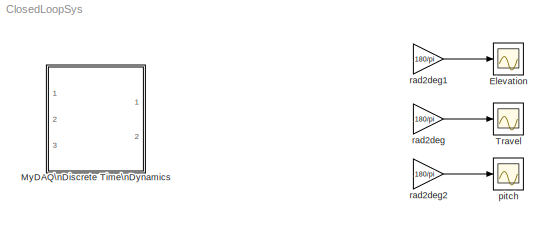
MODEL ClosedLoopSys
KIND model
BLOCK [Scope] Elevation
  DataFormat = StructureWithTime
  Floating = off
  LimitDataPoints = off
  NumInputPorts = 1
  Ports = [1]
  SID = 796
  SampleTime = 0
  SaveName = elev
  SaveToWorkspace = on
  ShowLegends = off
  TimeRange = 60
  YMax = 30
  YMin = -50
  ZoomMode = xonly
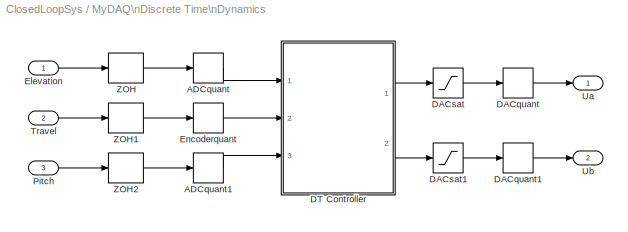
BLOCK [SubSystem] MyDAQ\nDiscrete Time\nDynamics
  Ports = [3, 2]
  RequestExecContextInheritance = off
  SID = 881
BLOCK [Quantizer] MyDAQ\nDiscrete Time\nDynamics/ADCquant
  QuantizationInterval = ADC_Vres
  SID = 885
  SampleTime = T
BLOCK [Quantizer] MyDAQ\nDiscrete Time\nDynamics/ADCquant1
  QuantizationInterval = ADC_Vres
  SID = 886
  SampleTime = T
BLOCK [Quantizer] MyDAQ\nDiscrete Time\nDynamics/DACquant
  QuantizationInterval = DAC_Vres
  SID = 887
  SampleTime = T
BLOCK [Quantizer] MyDAQ\nDiscrete Time\nDynamics/DACquant1
  QuantizationInterval = DAC_Vres
  SID = 888
  SampleTime = T
BLOCK [Saturate] MyDAQ\nDiscrete Time\nDynamics/DACsat
  InputPortMap = u0
  LowerLimit = DAC_lim_l
  Ports = [1, 1]
  SID = 889
  SampleTime = T
  UpperLimit = DAC_lim_u
BLOCK [Saturate] MyDAQ\nDiscrete Time\nDynamics/DACsat1
  InputPortMap = u0
  LowerLimit = DAC_lim_l
  Ports = [1, 1]
  SID = 890
  SampleTime = T
  UpperLimit = DAC_lim_u
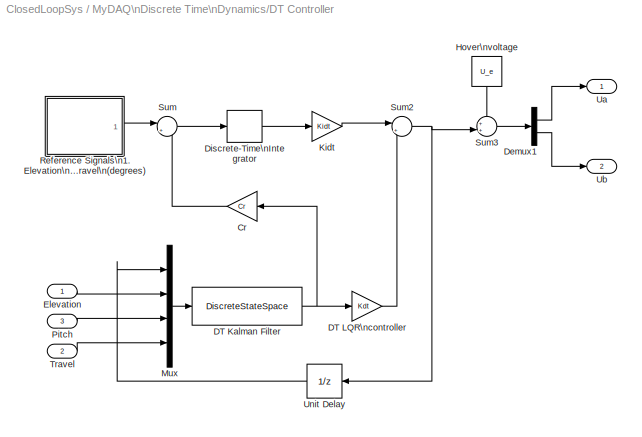
BLOCK [SubSystem] MyDAQ\nDiscrete Time\nDynamics/DT Controller
  Ports = [3, 2]
  RequestExecContextInheritance = off
  SID = 891
BLOCK [Gain] MyDAQ\nDiscrete Time\nDynamics/DT Controller/Cr
  Gain = Cr
  Multiplication = Matrix(K*u)
  OutDataTypeStr = Inherit: Inherit via internal rule
  ParamDataTypeStr = Inherit: Inherit via internal rule
  SID = 895
  SaturateOnIntegerOverflow = off
BLOCK [DiscreteStateSpace] MyDAQ\nDiscrete Time\nDynamics/DT Controller/DT Kalman Filter
  A = kdfilt.a
  B = kdfilt.b
  C = kdfilt.c(size(C,1)+1:end,:)
  D = kdfilt.d(size(C,1)+1:end,:)
  SID = 896
  SampleTime = T
  X0 = [e_lim_l; 0; 0; 0; 0; 0]
BLOCK [Gain] MyDAQ\nDiscrete Time\nDynamics/DT Controller/DT LQR\ncontroller
  Gain = Kdt
  Multiplication = Matrix(K*u)
  OutDataTypeStr = Inherit: Inherit via internal rule
  ParamDataTypeStr = Inherit: Inherit via internal rule
  SID = 897
  SaturateOnIntegerOverflow = off
BLOCK [Demux] MyDAQ\nDiscrete Time\nDynamics/DT Controller/Demux1
  DisplayOption = bar
  Outputs = 2
  Ports = [1, 2]
  SID = 898
BLOCK [DiscreteIntegrator] MyDAQ\nDiscrete Time\nDynamics/DT Controller/Discrete-Time\nIntegrator
  Ports = [1, 1]
  SID = 899
  SampleTime = T
BLOCK [Inport] MyDAQ\nDiscrete Time\nDynamics/DT Controller/Elevation
  IconDisplay = Port number
  SID = 892
BLOCK [Constant] MyDAQ\nDiscrete Time\nDynamics/DT Controller/Hover\nvoltage
  SID = 900
  SampleTime = T
  Value = U_e
BLOCK [Gain] MyDAQ\nDiscrete Time\nDynamics/DT Controller/Kidt
  Gain = Kidt
  Multiplication = Matrix(K*u)
  OutDataTypeStr = Inherit: Inherit via internal rule
  ParamDataTypeStr = Inherit: Inherit via internal rule
  SID = 901
  SaturateOnIntegerOverflow = off
BLOCK [Mux] MyDAQ\nDiscrete Time\nDynamics/DT Controller/Mux
  DisplayOption = bar
  Ports = [4, 1]
  SID = 902
BLOCK [Inport] MyDAQ\nDiscrete Time\nDynamics/DT Controller/Pitch
  IconDisplay = Port number
  Port = 3
  SID = 894
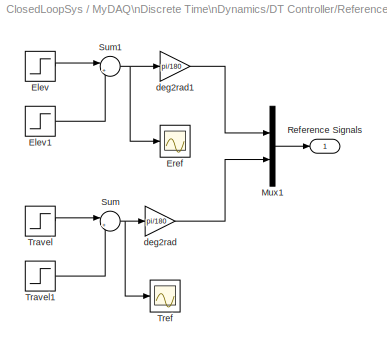
BLOCK [SubSystem] MyDAQ\nDiscrete Time\nDynamics/DT Controller/Reference Signals\n1. Elevation\n2. Travel\n(degrees)
  Ports = [0, 1]
  RequestExecContextInheritance = off
  SID = 903
BLOCK [Step] MyDAQ\nDiscrete Time\nDynamics/DT Controller/Reference Signals\n1. Elevation\n2. Travel\n(degrees)/Elev
  After = 0
  SID = 904
  SampleTime = T
  Time = 0
BLOCK [Step] MyDAQ\nDiscrete Time\nDynamics/DT Controller/Reference Signals\n1. Elevation\n2. Travel\n(degrees)/Elev1
  After = 10
  SID = 905
  SampleTime = T
  Time = 30
BLOCK [Scope] MyDAQ\nDiscrete Time\nDynamics/DT Controller/Reference Signals\n1. Elevation\n2. Travel\n(degrees)/Eref
  DataFormat = StructureWithTime
  Floating = off
  LimitDataPoints = off
  NumInputPorts = 1
  Ports = [1]
  SID = 906
  SampleTime = 0
  SaveName = eref
  SaveToWorkspace = on
  ShowLegends = off
  TimeRange = 60
  YMax = 20
  YMin = 0
  ZoomMode = xonly
BLOCK [Mux] MyDAQ\nDiscrete Time\nDynamics/DT Controller/Reference Signals\n1. Elevation\n2. Travel\n(degrees)/Mux1
  DisplayOption = bar
  Inputs = 2
  Ports = [2, 1]
  SID = 907
BLOCK [Outport] MyDAQ\nDiscrete Time\nDynamics/DT Controller/Reference Signals\n1. Elevation\n2. Travel\n(degrees)/Reference Signals
  IconDisplay = Port number
  SID = 915
BLOCK [Sum] MyDAQ\nDiscrete Time\nDynamics/DT Controller/Reference Signals\n1. Elevation\n2. Travel\n(degrees)/Sum
  IconShape = round
  Inputs = |++
  Ports = [2, 1]
  SID = 908
BLOCK [Sum] MyDAQ\nDiscrete Time\nDynamics/DT Controller/Reference Signals\n1. Elevation\n2. Travel\n(degrees)/Sum1
  IconShape = round
  Inputs = |++
  Ports = [2, 1]
  SID = 909
  SampleTime = T
BLOCK [Step] MyDAQ\nDiscrete Time\nDynamics/DT Controller/Reference Signals\n1. Elevation\n2. Travel\n(degrees)/Travel
  After = 180
  SID = 910
  SampleTime = T
  Time = 10
BLOCK [Step] MyDAQ\nDiscrete Time\nDynamics/DT Controller/Reference Signals\n1. Elevation\n2. Travel\n(degrees)/Travel1
  After = -180
  SID = 911
  SampleTime = T
  Time = 40
BLOCK [Scope] MyDAQ\nDiscrete Time\nDynamics/DT Controller/Reference Signals\n1. Elevation\n2. Travel\n(degrees)/Tref
  DataFormat = StructureWithTime
  Floating = off
  LimitDataPoints = off
  NumInputPorts = 1
  Ports = [1]
  SID = 912
  SampleTime = 0
  SaveName = tref
  SaveToWorkspace = on
  ShowLegends = off
  TimeRange = 60
  YMax = 140
  YMin = 0
  ZoomMode = xonly
BLOCK [Gain] MyDAQ\nDiscrete Time\nDynamics/DT Controller/Reference Signals\n1. Elevation\n2. Travel\n(degrees)/deg2rad
  Gain = pi/180
  SID = 913
BLOCK [Gain] MyDAQ\nDiscrete Time\nDynamics/DT Controller/Reference Signals\n1. Elevation\n2. Travel\n(degrees)/deg2rad1
  Gain = pi/180
  SID = 914
BLOCK [Sum] MyDAQ\nDiscrete Time\nDynamics/DT Controller/Sum
  IconShape = round
  InputSameDT = off
  Inputs = |+-
  OutDataTypeStr = Inherit: Inherit via internal rule
  Ports = [2, 1]
  SID = 916
  SampleTime = T
  SaturateOnIntegerOverflow = off
BLOCK [Sum] MyDAQ\nDiscrete Time\nDynamics/DT Controller/Sum2
  IconShape = round
  InputSameDT = off
  Inputs = |+-
  OutDataTypeStr = Inherit: Inherit via internal rule
  Ports = [2, 1]
  SID = 917
  SampleTime = T
  SaturateOnIntegerOverflow = off
BLOCK [Sum] MyDAQ\nDiscrete Time\nDynamics/DT Controller/Sum3
  IconShape = round
  InputSameDT = off
  Inputs = ++|
  OutDataTypeStr = Inherit: Inherit via internal rule
  Ports = [2, 1]
  SID = 918
  SampleTime = T
  SaturateOnIntegerOverflow = off
BLOCK [Inport] MyDAQ\nDiscrete Time\nDynamics/DT Controller/Travel
  IconDisplay = Port number
  Port = 2
  SID = 893
BLOCK [Outport] MyDAQ\nDiscrete Time\nDynamics/DT Controller/Ua
  IconDisplay = Port number
  SID = 920
BLOCK [Outport] MyDAQ\nDiscrete Time\nDynamics/DT Controller/Ub
  IconDisplay = Port number
  Port = 2
  SID = 921
BLOCK [UnitDelay] MyDAQ\nDiscrete Time\nDynamics/DT Controller/Unit Delay
  InputProcessing = Elements as channels (sample based)
  SID = 919
  SampleTime = T
BLOCK [Inport] MyDAQ\nDiscrete Time\nDynamics/Elevation
  IconDisplay = Port number
  SID = 882
BLOCK [Quantizer] MyDAQ\nDiscrete Time\nDynamics/Encoderquant
  QuantizationInterval = Encoder_res
  SID = 922
  SampleTime = T
BLOCK [Inport] MyDAQ\nDiscrete Time\nDynamics/Pitch
  IconDisplay = Port number
  Port = 3
  SID = 884
BLOCK [Inport] MyDAQ\nDiscrete Time\nDynamics/Travel
  IconDisplay = Port number
  Port = 2
  SID = 883
BLOCK [Outport] MyDAQ\nDiscrete Time\nDynamics/Ua
  IconDisplay = Port number
  SID = 926
BLOCK [Outport] MyDAQ\nDiscrete Time\nDynamics/Ub
  IconDisplay = Port number
  Port = 2
  SID = 927
BLOCK [ZeroOrderHold] MyDAQ\nDiscrete Time\nDynamics/ZOH
  SID = 923
  SampleTime = T
BLOCK [ZeroOrderHold] MyDAQ\nDiscrete Time\nDynamics/ZOH1
  SID = 924
  SampleTime = T
BLOCK [ZeroOrderHold] MyDAQ\nDiscrete Time\nDynamics/ZOH2
  SID = 925
  SampleTime = T
BLOCK [Scope] Travel
  DataFormat = StructureWithTime
  Floating = off
  LimitDataPoints = off
  NumInputPorts = 1
  Ports = [1]
  SID = 928
  SampleTime = 0
  SaveName = trav
  SaveToWorkspace = on
  ShowLegends = off
  TimeRange = 60
  YMax = 300
  YMin = -150
  ZoomMode = yonly
BLOCK [Scope] pitch
  DataFormat = StructureWithTime
  Floating = off
  LimitDataPoints = off
  NumInputPorts = 1
  Ports = [1]
  SID = 929
  SampleTime = 0
  SaveName = pitch
  SaveToWorkspace = on
  ShowLegends = off
  TimeRange = 60
  YMax = 20
  YMin = -25
  ZoomMode = yonly
BLOCK [Gain] rad2deg
  Gain = 180/pi
  SID = 930
BLOCK [Gain] rad2deg1
  Gain = 180/pi
  SID = 931
BLOCK [Gain] rad2deg2
  Gain = 180/pi
  SID = 932
LINE MyDAQ\nDiscrete Time\nDynamics/ADCquant1:1 -> MyDAQ\nDiscrete Time\nDynamics/DT Controller:3
LINE MyDAQ\nDiscrete Time\nDynamics/ADCquant:1 -> MyDAQ\nDiscrete Time\nDynamics/DT Controller:1
LINE MyDAQ\nDiscrete Time\nDynamics/DACquant1:1 -> MyDAQ\nDiscrete Time\nDynamics/Ub:1
LINE MyDAQ\nDiscrete Time\nDynamics/DACquant:1 -> MyDAQ\nDiscrete Time\nDynamics/Ua:1
LINE MyDAQ\nDiscrete Time\nDynamics/DACsat1:1 -> MyDAQ\nDiscrete Time\nDynamics/DACquant1:1
LINE MyDAQ\nDiscrete Time\nDynamics/DACsat:1 -> MyDAQ\nDiscrete Time\nDynamics/DACquant:1
LINE MyDAQ\nDiscrete Time\nDynamics/DT Controller/Cr:1 -> MyDAQ\nDiscrete Time\nDynamics/DT Controller/Sum:2
NET MyDAQ\nDiscrete Time\nDynamics/DT Controller/DT Kalman Filter:1 -> MyDAQ\nDiscrete Time\nDynamics/DT Controller/Cr:1, MyDAQ\nDiscrete Time\nDynamics/DT Controller/DT LQR\ncontroller:1
LINE MyDAQ\nDiscrete Time\nDynamics/DT Controller/DT LQR\ncontroller:1 -> MyDAQ\nDiscrete Time\nDynamics/DT Controller/Sum2:2
LINE MyDAQ\nDiscrete Time\nDynamics/DT Controller/Demux1:1 -> MyDAQ\nDiscrete Time\nDynamics/DT Controller/Ua:1
LINE MyDAQ\nDiscrete Time\nDynamics/DT Controller/Demux1:2 -> MyDAQ\nDiscrete Time\nDynamics/DT Controller/Ub:1
LINE MyDAQ\nDiscrete Time\nDynamics/DT Controller/Discrete-Time\nIntegrator:1 -> MyDAQ\nDiscrete Time\nDynamics/DT Controller/Kidt:1
LINE MyDAQ\nDiscrete Time\nDynamics/DT Controller/Elevation:1 -> MyDAQ\nDiscrete Time\nDynamics/DT Controller/Mux:2
LINE MyDAQ\nDiscrete Time\nDynamics/DT Controller/Hover\nvoltage:1 -> MyDAQ\nDiscrete Time\nDynamics/DT Controller/Sum3:1
LINE MyDAQ\nDiscrete Time\nDynamics/DT Controller/Kidt:1 -> MyDAQ\nDiscrete Time\nDynamics/DT Controller/Sum2:1
LINE MyDAQ\nDiscrete Time\nDynamics/DT Controller/Mux:1 -> MyDAQ\nDiscrete Time\nDynamics/DT Controller/DT Kalman Filter:1
LINE MyDAQ\nDiscrete Time\nDynamics/DT Controller/Pitch:1 -> MyDAQ\nDiscrete Time\nDynamics/DT Controller/Mux:3
LINE MyDAQ\nDiscrete Time\nDynamics/DT Controller/Reference Signals\n1. Elevation\n2. Travel\n(degrees)/Elev1:1 -> MyDAQ\nDiscrete Time\nDynamics/DT Controller/Reference Signals\n1. Elevation\n2. Travel\n(degrees)/Sum1:2
LINE MyDAQ\nDiscrete Time\nDynamics/DT Controller/Reference Signals\n1. Elevation\n2. Travel\n(degrees)/Elev:1 -> MyDAQ\nDiscrete Time\nDynamics/DT Controller/Reference Signals\n1. Elevation\n2. Travel\n(degrees)/Sum1:1
LINE MyDAQ\nDiscrete Time\nDynamics/DT Controller/Reference Signals\n1. Elevation\n2. Travel\n(degrees)/Mux1:1 -> MyDAQ\nDiscrete Time\nDynamics/DT Controller/Reference Signals\n1. Elevation\n2. Travel\n(degrees)/Reference Signals:1
NET MyDAQ\nDiscrete Time\nDynamics/DT Controller/Reference Signals\n1. Elevation\n2. Travel\n(degrees)/Sum1:1 -> MyDAQ\nDiscrete Time\nDynamics/DT Controller/Reference Signals\n1. Elevation\n2. Travel\n(degrees)/Eref:1, MyDAQ\nDiscrete Time\nDynamics/DT Controller/Reference Signals\n1. Elevation\n2. Travel\n(degrees)/deg2rad1:1
NET MyDAQ\nDiscrete Time\nDynamics/DT Controller/Reference Signals\n1. Elevation\n2. Travel\n(degrees)/Sum:1 -> MyDAQ\nDiscrete Time\nDynamics/DT Controller/Reference Signals\n1. Elevation\n2. Travel\n(degrees)/Tref:1, MyDAQ\nDiscrete Time\nDynamics/DT Controller/Reference Signals\n1. Elevation\n2. Travel\n(degrees)/deg2rad:1
LINE MyDAQ\nDiscrete Time\nDynamics/DT Controller/Reference Signals\n1. Elevation\n2. Travel\n(degrees)/Travel1:1 -> MyDAQ\nDiscrete Time\nDynamics/DT Controller/Reference Signals\n1. Elevation\n2. Travel\n(degrees)/Sum:2
LINE MyDAQ\nDiscrete Time\nDynamics/DT Controller/Reference Signals\n1. Elevation\n2. Travel\n(degrees)/Travel:1 -> MyDAQ\nDiscrete Time\nDynamics/DT Controller/Reference Signals\n1. Elevation\n2. Travel\n(degrees)/Sum:1
LINE MyDAQ\nDiscrete Time\nDynamics/DT Controller/Reference Signals\n1. Elevation\n2. Travel\n(degrees)/deg2rad1:1 -> MyDAQ\nDiscrete Time\nDynamics/DT Controller/Reference Signals\n1. Elevation\n2. Travel\n(degrees)/Mux1:1
LINE MyDAQ\nDiscrete Time\nDynamics/DT Controller/Reference Signals\n1. Elevation\n2. Travel\n(degrees)/deg2rad:1 -> MyDAQ\nDiscrete Time\nDynamics/DT Controller/Reference Signals\n1. Elevation\n2. Travel\n(degrees)/Mux1:2
LINE MyDAQ\nDiscrete Time\nDynamics/DT Controller/Reference Signals\n1. Elevation\n2. Travel\n(degrees):1 -> MyDAQ\nDiscrete Time\nDynamics/DT Controller/Sum:1
NET MyDAQ\nDiscrete Time\nDynamics/DT Controller/Sum2:1 -> MyDAQ\nDiscrete Time\nDynamics/DT Controller/Sum3:2, MyDAQ\nDiscrete Time\nDynamics/DT Controller/Unit Delay:1
LINE MyDAQ\nDiscrete Time\nDynamics/DT Controller/Sum3:1 -> MyDAQ\nDiscrete Time\nDynamics/DT Controller/Demux1:1
LINE MyDAQ\nDiscrete Time\nDynamics/DT Controller/Sum:1 -> MyDAQ\nDiscrete Time\nDynamics/DT Controller/Discrete-Time\nIntegrator:1
LINE MyDAQ\nDiscrete Time\nDynamics/DT Controller/Travel:1 -> MyDAQ\nDiscrete Time\nDynamics/DT Controller/Mux:4
LINE MyDAQ\nDiscrete Time\nDynamics/DT Controller/Unit Delay:1 -> MyDAQ\nDiscrete Time\nDynamics/DT Controller/Mux:1
LINE MyDAQ\nDiscrete Time\nDynamics/DT Controller:1 -> MyDAQ\nDiscrete Time\nDynamics/DACsat:1
LINE MyDAQ\nDiscrete Time\nDynamics/DT Controller:2 -> MyDAQ\nDiscrete Time\nDynamics/DACsat1:1
LINE MyDAQ\nDiscrete Time\nDynamics/Elevation:1 -> MyDAQ\nDiscrete Time\nDynamics/ZOH:1
LINE MyDAQ\nDiscrete Time\nDynamics/Encoderquant:1 -> MyDAQ\nDiscrete Time\nDynamics/DT Controller:2
LINE MyDAQ\nDiscrete Time\nDynamics/Pitch:1 -> MyDAQ\nDiscrete Time\nDynamics/ZOH2:1
LINE MyDAQ\nDiscrete Time\nDynamics/Travel:1 -> MyDAQ\nDiscrete Time\nDynamics/ZOH1:1
LINE MyDAQ\nDiscrete Time\nDynamics/ZOH1:1 -> MyDAQ\nDiscrete Time\nDynamics/Encoderquant:1
LINE MyDAQ\nDiscrete Time\nDynamics/ZOH2:1 -> MyDAQ\nDiscrete Time\nDynamics/ADCquant1:1
LINE MyDAQ\nDiscrete Time\nDynamics/ZOH:1 -> MyDAQ\nDiscrete Time\nDynamics/ADCquant:1
LINE rad2deg1:1 -> Elevation:1
LINE rad2deg2:1 -> pitch:1
LINE rad2deg:1 -> Travel:1
note: NET lines group one-source signal fan-out (src -> all destinations, sorted); 1:1 wires keep LINE
